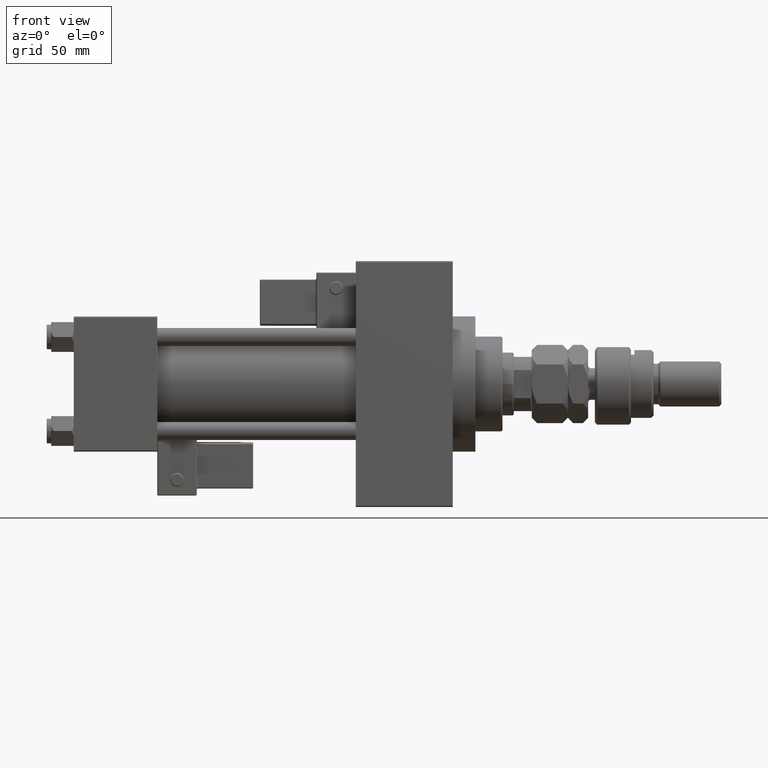
[diagram: clean part render]
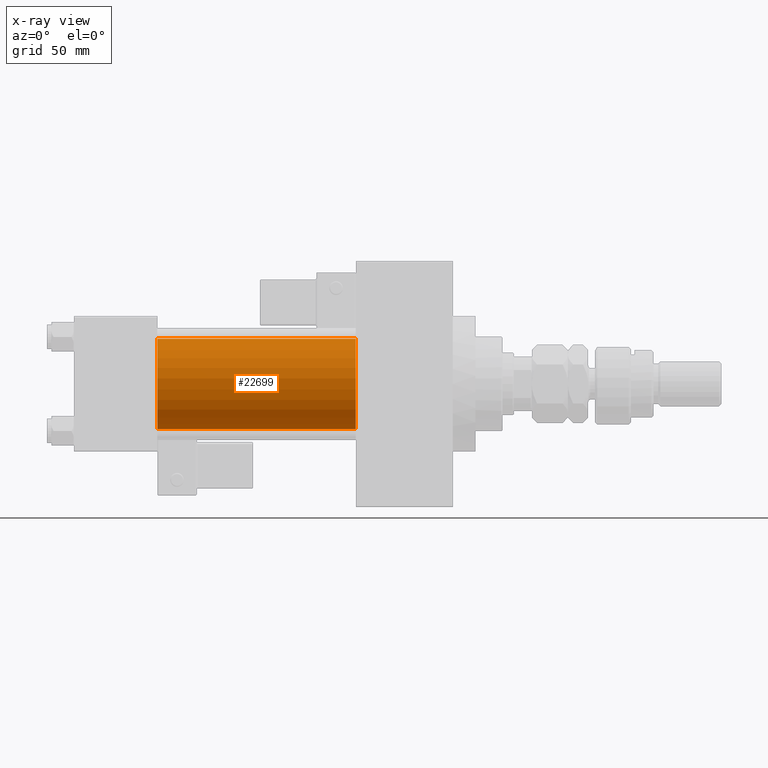
[diagram: x-ray — body ghosted, one internal face saturated and labeled with its STEP entity id]
A machine part, front view, then the same camera in x-ray: the body is ghosted and one INTERNAL B-rep face — a face not visible from any outside direction — is saturated and labeled: STEP entity #22699.
In plain terms, the highlighted cylindrical surface (partial cylindrical patch) has radius 20 mm, axis along (-1, -0, -0).
Its self-contained STEP definition (entity closure, byte-faithful):
#189 = EDGE_CURVE ( 'NONE', #39566, #34808, #25587, .T. ) ;
#357 = DIRECTION ( 'NONE',  ( -1.000000000000000000, -0.000000000000000000, -0.000000000000000000 ) ) ;
#2119 = CARTESIAN_POINT ( 'NONE',  ( 37.00000000000000000, -2.602085213965210642E-15, 0.000000000000000000 ) ) ;
#2975 = VERTEX_POINT ( 'NONE', #21708 ) ;
#3378 = CARTESIAN_POINT ( 'NONE',  ( 37.00000000000000000, -2.602085213965210642E-15, 20.00000000000000000 ) ) ;
#5865 = CIRCLE ( 'NONE', #10130, 20.00000000000000000 ) ;
#8801 = EDGE_CURVE ( 'NONE', #18506, #34808, #20286, .T. ) ;
#9011 = EDGE_LOOP ( 'NONE', ( #22563, #37322, #36364, #30296 ) ) ;
#9637 = DIRECTION ( 'NONE',  ( 0.000000000000000000, 0.000000000000000000, 1.000000000000000000 ) ) ;
#10130 = AXIS2_PLACEMENT_3D ( 'NONE', #12749, #11971, #44410 ) ;
#10395 = DIRECTION ( 'NONE',  ( -1.000000000000000000, -0.000000000000000000, -0.000000000000000000 ) ) ;
#11971 = DIRECTION ( 'NONE',  ( 1.000000000000000000, 0.000000000000000000, 0.000000000000000000 ) ) ;
#12749 = CARTESIAN_POINT ( 'NONE',  ( 125.0000000000000000, -2.602085213965210642E-15, 0.000000000000000000 ) ) ;
#17588 = LINE ( 'NONE', #46811, #51659 ) ;
#18506 = VERTEX_POINT ( 'NONE', #34852 ) ;
#20286 = LINE ( 'NONE', #39507, #39427 ) ;
#21376 = CARTESIAN_POINT ( 'NONE',  ( 37.00000000000000000, -1.527916156705042519E-16, -20.00000000000000000 ) ) ;
#21708 = CARTESIAN_POINT ( 'NONE',  ( 125.0000000000000000, -2.602085213965210642E-15, 20.00000000000000000 ) ) ;
#22096 = CARTESIAN_POINT ( 'NONE',  ( 125.0000000000000000, -2.602085213965210642E-15, 0.000000000000000000 ) ) ;
#22563 = ORIENTED_EDGE ( 'NONE', *, *, #42020, .T. ) ;
#22699 = ADVANCED_FACE ( 'NONE', ( #29032 ), #49779, .F. ) ;
#23048 = AXIS2_PLACEMENT_3D ( 'NONE', #2119, #38783, #51275 ) ;
#25560 = DIRECTION ( 'NONE',  ( -1.000000000000000000, -0.000000000000000000, -0.000000000000000000 ) ) ;
#25587 = CIRCLE ( 'NONE', #23048, 20.00000000000000000 ) ;
#29032 = FACE_OUTER_BOUND ( 'NONE', #9011, .T. ) ;
#30296 = ORIENTED_EDGE ( 'NONE', *, *, #41119, .F. ) ;
#34789 = AXIS2_PLACEMENT_3D ( 'NONE', #22096, #25560, #9637 ) ;
#34808 = VERTEX_POINT ( 'NONE', #21376 ) ;
#34852 = CARTESIAN_POINT ( 'NONE',  ( 125.0000000000000000, -1.527916156705042519E-16, -20.00000000000000000 ) ) ;
#36364 = ORIENTED_EDGE ( 'NONE', *, *, #189, .F. ) ;
#37322 = ORIENTED_EDGE ( 'NONE', *, *, #8801, .T. ) ;
#38783 = DIRECTION ( 'NONE',  ( 1.000000000000000000, 0.000000000000000000, 0.000000000000000000 ) ) ;
#39427 = VECTOR ( 'NONE', #357, 1000.000000000000000 ) ;
#39507 = CARTESIAN_POINT ( 'NONE',  ( 125.0000000000000000, -1.527916156705042519E-16, -20.00000000000000000 ) ) ;
#39566 = VERTEX_POINT ( 'NONE', #3378 ) ;
#41119 = EDGE_CURVE ( 'NONE', #2975, #39566, #17588, .T. ) ;
#42020 = EDGE_CURVE ( 'NONE', #2975, #18506, #5865, .T. ) ;
#44410 = DIRECTION ( 'NONE',  ( 0.000000000000000000, 0.000000000000000000, -1.000000000000000000 ) ) ;
#46811 = CARTESIAN_POINT ( 'NONE',  ( 125.0000000000000000, -2.602085213965210642E-15, 20.00000000000000000 ) ) ;
#49779 = CYLINDRICAL_SURFACE ( 'NONE', #34789, 20.00000000000000000 ) ;
#51275 = DIRECTION ( 'NONE',  ( 0.000000000000000000, 0.000000000000000000, -1.000000000000000000 ) ) ;
#51659 = VECTOR ( 'NONE', #10395, 1000.000000000000000 ) ;